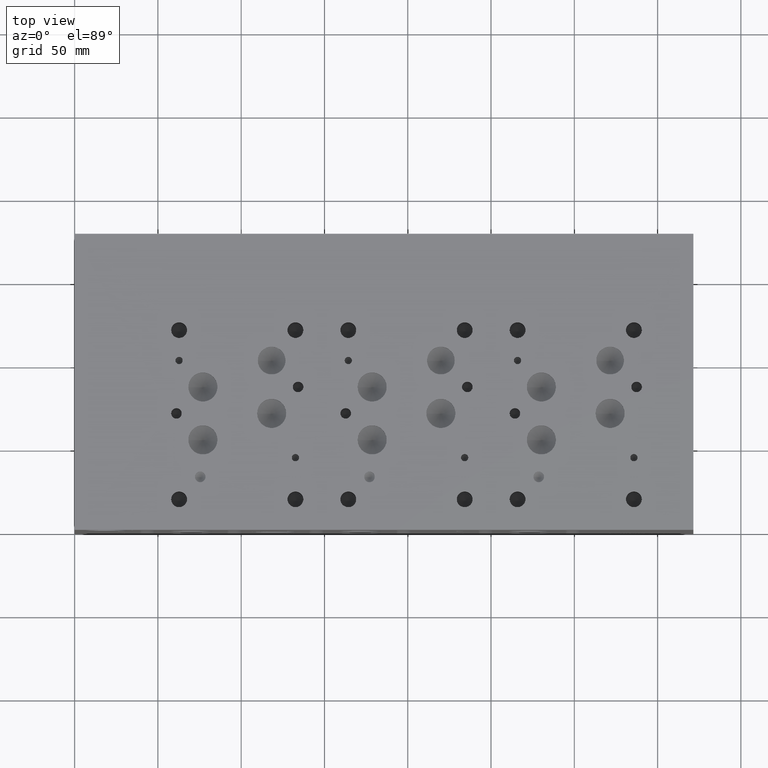
[diagram: clean part render]
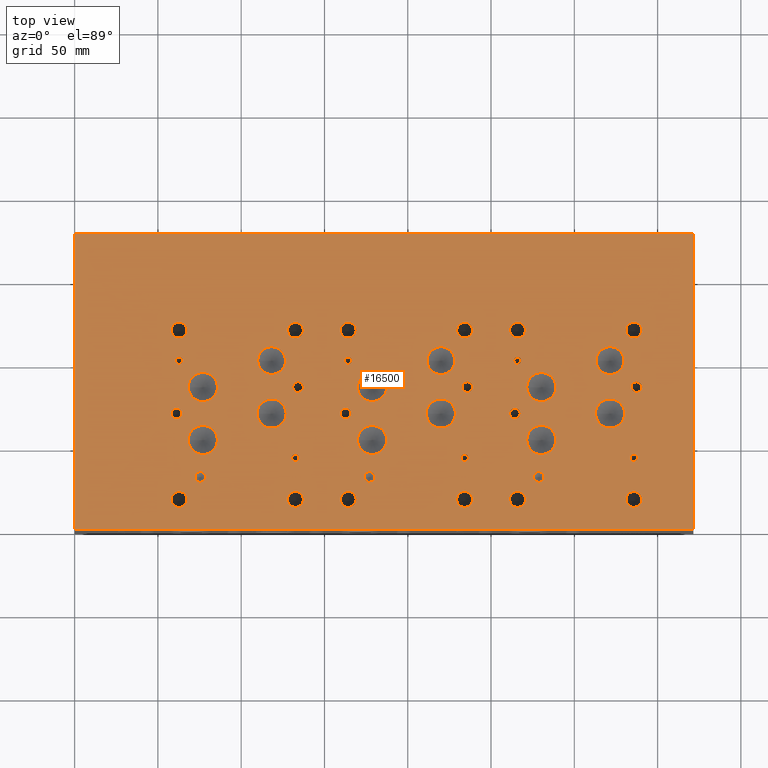
[diagram: same view with one face highlighted and labeled with its STEP entity id]
A machine part, top view. The second image highlights one B-rep face of the part: STEP entity #16500.
In plain terms, the highlighted planar face has unit normal (0, 0, 1).
Its self-contained STEP definition (entity closure, byte-faithful):
#668=CIRCLE('',#17504,2.1844);
#669=CIRCLE('',#17505,2.1844);
#672=CIRCLE('',#17510,2.1844);
#673=CIRCLE('',#17511,2.1844);
#676=CIRCLE('',#17516,2.1844);
#677=CIRCLE('',#17517,2.1844);
#680=CIRCLE('',#17522,2.1844);
#681=CIRCLE('',#17523,2.1844);
#684=CIRCLE('',#17528,3.175);
#685=CIRCLE('',#17529,3.175);
#688=CIRCLE('',#17534,3.175);
#689=CIRCLE('',#17535,3.175);
#692=CIRCLE('',#17540,3.175);
#693=CIRCLE('',#17541,3.175);
#696=CIRCLE('',#17546,8.3312);
#697=CIRCLE('',#17547,8.3312);
#700=CIRCLE('',#17552,8.3312);
#701=CIRCLE('',#17553,8.3312);
#704=CIRCLE('',#17558,8.3312);
#705=CIRCLE('',#17559,8.3312);
#708=CIRCLE('',#17564,8.7376);
#709=CIRCLE('',#17565,8.7376);
#712=CIRCLE('',#17570,8.7376);
#713=CIRCLE('',#17571,8.7376);
#716=CIRCLE('',#17576,8.7376);
#717=CIRCLE('',#17577,8.7376);
#720=CIRCLE('',#17582,8.7376);
#721=CIRCLE('',#17583,8.7376);
#724=CIRCLE('',#17588,8.7376);
#725=CIRCLE('',#17589,8.7376);
#728=CIRCLE('',#17594,8.7376);
#729=CIRCLE('',#17595,8.7376);
#732=CIRCLE('',#17600,8.7376);
#733=CIRCLE('',#17601,8.7376);
#736=CIRCLE('',#17606,8.7376);
#737=CIRCLE('',#17607,8.7376);
#740=CIRCLE('',#17612,8.7376);
#741=CIRCLE('',#17613,8.7376);
#744=CIRCLE('',#17618,2.1844);
#745=CIRCLE('',#17619,2.1844);
#748=CIRCLE('',#17624,2.1844);
#749=CIRCLE('',#17625,2.1844);
#755=CIRCLE('',#17634,3.175);
#756=CIRCLE('',#17635,3.175);
#762=CIRCLE('',#17645,3.175);
#763=CIRCLE('',#17646,3.175);
#769=CIRCLE('',#17656,3.175);
#770=CIRCLE('',#17657,3.175);
#776=CIRCLE('',#17667,3.175);
#777=CIRCLE('',#17668,3.175);
#783=CIRCLE('',#17678,3.175);
#784=CIRCLE('',#17679,3.175);
#790=CIRCLE('',#17689,3.175);
#791=CIRCLE('',#17690,3.175);
#797=CIRCLE('',#17700,4.7625);
#798=CIRCLE('',#17701,4.7625);
#804=CIRCLE('',#17711,4.7625);
#805=CIRCLE('',#17712,4.7625);
#811=CIRCLE('',#17722,4.7625);
#812=CIRCLE('',#17723,4.7625);
#818=CIRCLE('',#17733,4.7625);
#819=CIRCLE('',#17734,4.7625);
#825=CIRCLE('',#17744,4.7625);
#826=CIRCLE('',#17745,4.7625);
#832=CIRCLE('',#17755,4.7625);
#833=CIRCLE('',#17756,4.7625);
#839=CIRCLE('',#17766,4.7625);
#840=CIRCLE('',#17767,4.7625);
#846=CIRCLE('',#17777,4.7625);
#847=CIRCLE('',#17778,4.7625);
#853=CIRCLE('',#17788,4.7625);
#854=CIRCLE('',#17789,4.7625);
#860=CIRCLE('',#17799,4.7625);
#861=CIRCLE('',#17800,4.7625);
#867=CIRCLE('',#17810,4.7625);
#868=CIRCLE('',#17811,4.7625);
#874=CIRCLE('',#17821,4.7625);
#875=CIRCLE('',#17822,4.7625);
#1050=FACE_BOUND('',#3428,.T.);
#1051=FACE_BOUND('',#3429,.T.);
#1052=FACE_BOUND('',#3430,.T.);
#1053=FACE_BOUND('',#3431,.T.);
#1054=FACE_BOUND('',#3432,.T.);
#1055=FACE_BOUND('',#3433,.T.);
#1056=FACE_BOUND('',#3434,.T.);
#1057=FACE_BOUND('',#3435,.T.);
#1058=FACE_BOUND('',#3436,.T.);
#1059=FACE_BOUND('',#3437,.T.);
#1060=FACE_BOUND('',#3438,.T.);
#1061=FACE_BOUND('',#3439,.T.);
#1062=FACE_BOUND('',#3440,.T.);
#1063=FACE_BOUND('',#3441,.T.);
#1064=FACE_BOUND('',#3442,.T.);
#1065=FACE_BOUND('',#3443,.T.);
#1066=FACE_BOUND('',#3444,.T.);
#1067=FACE_BOUND('',#3445,.T.);
#1068=FACE_BOUND('',#3446,.T.);
#1069=FACE_BOUND('',#3447,.T.);
#1070=FACE_BOUND('',#3448,.T.);
#1071=FACE_BOUND('',#3449,.T.);
#1072=FACE_BOUND('',#3450,.T.);
#1073=FACE_BOUND('',#3451,.T.);
#1074=FACE_BOUND('',#3452,.T.);
#1075=FACE_BOUND('',#3453,.T.);
#1076=FACE_BOUND('',#3454,.T.);
#1077=FACE_BOUND('',#3455,.T.);
#1078=FACE_BOUND('',#3456,.T.);
#1079=FACE_BOUND('',#3457,.T.);
#1080=FACE_BOUND('',#3458,.T.);
#1081=FACE_BOUND('',#3459,.T.);
#1082=FACE_BOUND('',#3460,.T.);
#1083=FACE_BOUND('',#3461,.T.);
#1084=FACE_BOUND('',#3462,.T.);
#1085=FACE_BOUND('',#3463,.T.);
#1086=FACE_BOUND('',#3464,.T.);
#1087=FACE_BOUND('',#3465,.T.);
#1088=FACE_BOUND('',#3466,.T.);
#1539=PLANE('',#17828);
#2396=FACE_OUTER_BOUND('',#3427,.T.);
#3427=EDGE_LOOP('',(#14920,#14921,#14922,#14923));
#3428=EDGE_LOOP('',(#14924,#14925));
#3429=EDGE_LOOP('',(#14926,#14927));
#3430=EDGE_LOOP('',(#14928,#14929));
#3431=EDGE_LOOP('',(#14930,#14931));
#3432=EDGE_LOOP('',(#14932,#14933));
#3433=EDGE_LOOP('',(#14934,#14935));
#3434=EDGE_LOOP('',(#14936,#14937));
#3435=EDGE_LOOP('',(#14938,#14939));
#3436=EDGE_LOOP('',(#14940,#14941));
#3437=EDGE_LOOP('',(#14942,#14943));
#3438=EDGE_LOOP('',(#14944,#14945));
#3439=EDGE_LOOP('',(#14946,#14947));
#3440=EDGE_LOOP('',(#14948,#14949));
#3441=EDGE_LOOP('',(#14950,#14951));
#3442=EDGE_LOOP('',(#14952,#14953));
#3443=EDGE_LOOP('',(#14954,#14955));
#3444=EDGE_LOOP('',(#14956,#14957));
#3445=EDGE_LOOP('',(#14958,#14959));
#3446=EDGE_LOOP('',(#14960,#14961));
#3447=EDGE_LOOP('',(#14962,#14963));
#3448=EDGE_LOOP('',(#14964,#14965));
#3449=EDGE_LOOP('',(#14966,#14967));
#3450=EDGE_LOOP('',(#14968,#14969));
#3451=EDGE_LOOP('',(#14970,#14971));
#3452=EDGE_LOOP('',(#14972,#14973));
#3453=EDGE_LOOP('',(#14974,#14975));
#3454=EDGE_LOOP('',(#14976,#14977));
#3455=EDGE_LOOP('',(#14978,#14979));
#3456=EDGE_LOOP('',(#14980,#14981));
#3457=EDGE_LOOP('',(#14982,#14983));
#3458=EDGE_LOOP('',(#14984,#14985));
#3459=EDGE_LOOP('',(#14986,#14987));
#3460=EDGE_LOOP('',(#14988,#14989));
#3461=EDGE_LOOP('',(#14990,#14991));
#3462=EDGE_LOOP('',(#14992,#14993));
#3463=EDGE_LOOP('',(#14994,#14995));
#3464=EDGE_LOOP('',(#14996,#14997));
#3465=EDGE_LOOP('',(#14998,#14999));
#3466=EDGE_LOOP('',(#15000,#15001));
#3502=LINE('',#22070,#4903);
#3562=LINE('',#22377,#4963);
#3897=LINE('',#24107,#5298);
#4868=LINE('',#28429,#6269);
#4903=VECTOR('',#17886,10.);
#4963=VECTOR('',#18032,10.);
#5298=VECTOR('',#18621,10.);
#6269=VECTOR('',#21852,10.);
#6582=VERTEX_POINT('',#22067);
#6583=VERTEX_POINT('',#22069);
#6658=VERTEX_POINT('',#22374);
#6659=VERTEX_POINT('',#22376);
#7935=VERTEX_POINT('',#27765);
#7936=VERTEX_POINT('',#27766);
#7940=VERTEX_POINT('',#27778);
#7941=VERTEX_POINT('',#27779);
#7945=VERTEX_POINT('',#27791);
#7946=VERTEX_POINT('',#27792);
#7950=VERTEX_POINT('',#27804);
#7951=VERTEX_POINT('',#27805);
#7955=VERTEX_POINT('',#27817);
#7956=VERTEX_POINT('',#27818);
#7960=VERTEX_POINT('',#27830);
#7961=VERTEX_POINT('',#27831);
#7965=VERTEX_POINT('',#27843);
#7966=VERTEX_POINT('',#27844);
#7970=VERTEX_POINT('',#27856);
#7971=VERTEX_POINT('',#27857);
#7975=VERTEX_POINT('',#27869);
#7976=VERTEX_POINT('',#27870);
#7980=VERTEX_POINT('',#27882);
#7981=VERTEX_POINT('',#27883);
#7985=VERTEX_POINT('',#27895);
#7986=VERTEX_POINT('',#27896);
#7990=VERTEX_POINT('',#27908);
#7991=VERTEX_POINT('',#27909);
#7995=VERTEX_POINT('',#27921);
#7996=VERTEX_POINT('',#27922);
#8000=VERTEX_POINT('',#27934);
#8001=VERTEX_POINT('',#27935);
#8005=VERTEX_POINT('',#27947);
#8006=VERTEX_POINT('',#27948);
#8010=VERTEX_POINT('',#27960);
#8011=VERTEX_POINT('',#27961);
#8015=VERTEX_POINT('',#27973);
#8016=VERTEX_POINT('',#27974);
#8020=VERTEX_POINT('',#27986);
#8021=VERTEX_POINT('',#27987);
#8025=VERTEX_POINT('',#27999);
#8026=VERTEX_POINT('',#28000);
#8030=VERTEX_POINT('',#28012);
#8031=VERTEX_POINT('',#28013);
#8035=VERTEX_POINT('',#28025);
#8036=VERTEX_POINT('',#28026);
#8043=VERTEX_POINT('',#28045);
#8044=VERTEX_POINT('',#28046);
#8051=VERTEX_POINT('',#28067);
#8052=VERTEX_POINT('',#28068);
#8059=VERTEX_POINT('',#28089);
#8060=VERTEX_POINT('',#28090);
#8067=VERTEX_POINT('',#28111);
#8068=VERTEX_POINT('',#28112);
#8075=VERTEX_POINT('',#28133);
#8076=VERTEX_POINT('',#28134);
#8083=VERTEX_POINT('',#28155);
#8084=VERTEX_POINT('',#28156);
#8091=VERTEX_POINT('',#28177);
#8092=VERTEX_POINT('',#28178);
#8099=VERTEX_POINT('',#28199);
#8100=VERTEX_POINT('',#28200);
#8107=VERTEX_POINT('',#28221);
#8108=VERTEX_POINT('',#28222);
#8115=VERTEX_POINT('',#28243);
#8116=VERTEX_POINT('',#28244);
#8123=VERTEX_POINT('',#28265);
#8124=VERTEX_POINT('',#28266);
#8131=VERTEX_POINT('',#28287);
#8132=VERTEX_POINT('',#28288);
#8139=VERTEX_POINT('',#28309);
#8140=VERTEX_POINT('',#28310);
#8147=VERTEX_POINT('',#28331);
#8148=VERTEX_POINT('',#28332);
#8155=VERTEX_POINT('',#28353);
#8156=VERTEX_POINT('',#28354);
#8163=VERTEX_POINT('',#28375);
#8164=VERTEX_POINT('',#28376);
#8171=VERTEX_POINT('',#28397);
#8172=VERTEX_POINT('',#28398);
#8179=VERTEX_POINT('',#28419);
#8180=VERTEX_POINT('',#28420);
#8231=EDGE_CURVE('',#6583,#6582,#3502,.T.);
#8331=EDGE_CURVE('',#6659,#6658,#3562,.T.);
#8808=EDGE_CURVE('',#6658,#6583,#3897,.T.);
#10151=EDGE_CURVE('',#7935,#7936,#668,.T.);
#10152=EDGE_CURVE('',#7936,#7935,#669,.T.);
#10157=EDGE_CURVE('',#7940,#7941,#672,.T.);
#10158=EDGE_CURVE('',#7941,#7940,#673,.T.);
#10163=EDGE_CURVE('',#7945,#7946,#676,.T.);
#10164=EDGE_CURVE('',#7946,#7945,#677,.T.);
#10169=EDGE_CURVE('',#7950,#7951,#680,.T.);
#10170=EDGE_CURVE('',#7951,#7950,#681,.T.);
#10175=EDGE_CURVE('',#7955,#7956,#684,.T.);
#10176=EDGE_CURVE('',#7956,#7955,#685,.T.);
#10181=EDGE_CURVE('',#7960,#7961,#688,.T.);
#10182=EDGE_CURVE('',#7961,#7960,#689,.T.);
#10187=EDGE_CURVE('',#7965,#7966,#692,.T.);
#10188=EDGE_CURVE('',#7966,#7965,#693,.T.);
#10193=EDGE_CURVE('',#7970,#7971,#696,.T.);
#10194=EDGE_CURVE('',#7971,#7970,#697,.T.);
#10199=EDGE_CURVE('',#7975,#7976,#700,.T.);
#10200=EDGE_CURVE('',#7976,#7975,#701,.T.);
#10205=EDGE_CURVE('',#7980,#7981,#704,.T.);
#10206=EDGE_CURVE('',#7981,#7980,#705,.T.);
#10211=EDGE_CURVE('',#7985,#7986,#708,.T.);
#10212=EDGE_CURVE('',#7986,#7985,#709,.T.);
#10217=EDGE_CURVE('',#7990,#7991,#712,.T.);
#10218=EDGE_CURVE('',#7991,#7990,#713,.T.);
#10223=EDGE_CURVE('',#7995,#7996,#716,.T.);
#10224=EDGE_CURVE('',#7996,#7995,#717,.T.);
#10229=EDGE_CURVE('',#8000,#8001,#720,.T.);
#10230=EDGE_CURVE('',#8001,#8000,#721,.T.);
#10235=EDGE_CURVE('',#8005,#8006,#724,.T.);
#10236=EDGE_CURVE('',#8006,#8005,#725,.T.);
#10241=EDGE_CURVE('',#8010,#8011,#728,.T.);
#10242=EDGE_CURVE('',#8011,#8010,#729,.T.);
#10247=EDGE_CURVE('',#8015,#8016,#732,.T.);
#10248=EDGE_CURVE('',#8016,#8015,#733,.T.);
#10253=EDGE_CURVE('',#8020,#8021,#736,.T.);
#10254=EDGE_CURVE('',#8021,#8020,#737,.T.);
#10259=EDGE_CURVE('',#8025,#8026,#740,.T.);
#10260=EDGE_CURVE('',#8026,#8025,#741,.T.);
#10265=EDGE_CURVE('',#8030,#8031,#744,.T.);
#10266=EDGE_CURVE('',#8031,#8030,#745,.T.);
#10271=EDGE_CURVE('',#8035,#8036,#748,.T.);
#10272=EDGE_CURVE('',#8036,#8035,#749,.T.);
#10280=EDGE_CURVE('',#8043,#8044,#755,.T.);
#10281=EDGE_CURVE('',#8044,#8043,#756,.T.);
#10290=EDGE_CURVE('',#8051,#8052,#762,.T.);
#10291=EDGE_CURVE('',#8052,#8051,#763,.T.);
#10300=EDGE_CURVE('',#8059,#8060,#769,.T.);
#10301=EDGE_CURVE('',#8060,#8059,#770,.T.);
#10310=EDGE_CURVE('',#8067,#8068,#776,.T.);
#10311=EDGE_CURVE('',#8068,#8067,#777,.T.);
#10320=EDGE_CURVE('',#8075,#8076,#783,.T.);
#10321=EDGE_CURVE('',#8076,#8075,#784,.T.);
#10330=EDGE_CURVE('',#8083,#8084,#790,.T.);
#10331=EDGE_CURVE('',#8084,#8083,#791,.T.);
#10340=EDGE_CURVE('',#8091,#8092,#797,.T.);
#10341=EDGE_CURVE('',#8092,#8091,#798,.T.);
#10350=EDGE_CURVE('',#8099,#8100,#804,.T.);
#10351=EDGE_CURVE('',#8100,#8099,#805,.T.);
#10360=EDGE_CURVE('',#8107,#8108,#811,.T.);
#10361=EDGE_CURVE('',#8108,#8107,#812,.T.);
#10370=EDGE_CURVE('',#8115,#8116,#818,.T.);
#10371=EDGE_CURVE('',#8116,#8115,#819,.T.);
#10380=EDGE_CURVE('',#8123,#8124,#825,.T.);
#10381=EDGE_CURVE('',#8124,#8123,#826,.T.);
#10390=EDGE_CURVE('',#8131,#8132,#832,.T.);
#10391=EDGE_CURVE('',#8132,#8131,#833,.T.);
#10400=EDGE_CURVE('',#8139,#8140,#839,.T.);
#10401=EDGE_CURVE('',#8140,#8139,#840,.T.);
#10410=EDGE_CURVE('',#8147,#8148,#846,.T.);
#10411=EDGE_CURVE('',#8148,#8147,#847,.T.);
#10420=EDGE_CURVE('',#8155,#8156,#853,.T.);
#10421=EDGE_CURVE('',#8156,#8155,#854,.T.);
#10430=EDGE_CURVE('',#8163,#8164,#860,.T.);
#10431=EDGE_CURVE('',#8164,#8163,#861,.T.);
#10440=EDGE_CURVE('',#8171,#8172,#867,.T.);
#10441=EDGE_CURVE('',#8172,#8171,#868,.T.);
#10450=EDGE_CURVE('',#8179,#8180,#874,.T.);
#10451=EDGE_CURVE('',#8180,#8179,#875,.T.);
#10455=EDGE_CURVE('',#6582,#6659,#4868,.T.);
#14920=ORIENTED_EDGE('',*,*,#8808,.T.);
#14921=ORIENTED_EDGE('',*,*,#8231,.T.);
#14922=ORIENTED_EDGE('',*,*,#10455,.T.);
#14923=ORIENTED_EDGE('',*,*,#8331,.T.);
#14924=ORIENTED_EDGE('',*,*,#10151,.T.);
#14925=ORIENTED_EDGE('',*,*,#10152,.T.);
#14926=ORIENTED_EDGE('',*,*,#10157,.T.);
#14927=ORIENTED_EDGE('',*,*,#10158,.T.);
#14928=ORIENTED_EDGE('',*,*,#10163,.T.);
#14929=ORIENTED_EDGE('',*,*,#10164,.T.);
#14930=ORIENTED_EDGE('',*,*,#10169,.T.);
#14931=ORIENTED_EDGE('',*,*,#10170,.T.);
#14932=ORIENTED_EDGE('',*,*,#10175,.T.);
#14933=ORIENTED_EDGE('',*,*,#10176,.T.);
#14934=ORIENTED_EDGE('',*,*,#10181,.T.);
#14935=ORIENTED_EDGE('',*,*,#10182,.T.);
#14936=ORIENTED_EDGE('',*,*,#10187,.T.);
#14937=ORIENTED_EDGE('',*,*,#10188,.T.);
#14938=ORIENTED_EDGE('',*,*,#10193,.T.);
#14939=ORIENTED_EDGE('',*,*,#10194,.T.);
#14940=ORIENTED_EDGE('',*,*,#10199,.T.);
#14941=ORIENTED_EDGE('',*,*,#10200,.T.);
#14942=ORIENTED_EDGE('',*,*,#10205,.T.);
#14943=ORIENTED_EDGE('',*,*,#10206,.T.);
#14944=ORIENTED_EDGE('',*,*,#10211,.T.);
#14945=ORIENTED_EDGE('',*,*,#10212,.T.);
#14946=ORIENTED_EDGE('',*,*,#10217,.T.);
#14947=ORIENTED_EDGE('',*,*,#10218,.T.);
#14948=ORIENTED_EDGE('',*,*,#10223,.T.);
#14949=ORIENTED_EDGE('',*,*,#10224,.T.);
#14950=ORIENTED_EDGE('',*,*,#10229,.T.);
#14951=ORIENTED_EDGE('',*,*,#10230,.T.);
#14952=ORIENTED_EDGE('',*,*,#10235,.T.);
#14953=ORIENTED_EDGE('',*,*,#10236,.T.);
#14954=ORIENTED_EDGE('',*,*,#10241,.T.);
#14955=ORIENTED_EDGE('',*,*,#10242,.T.);
#14956=ORIENTED_EDGE('',*,*,#10247,.T.);
#14957=ORIENTED_EDGE('',*,*,#10248,.T.);
#14958=ORIENTED_EDGE('',*,*,#10253,.T.);
#14959=ORIENTED_EDGE('',*,*,#10254,.T.);
#14960=ORIENTED_EDGE('',*,*,#10259,.T.);
#14961=ORIENTED_EDGE('',*,*,#10260,.T.);
#14962=ORIENTED_EDGE('',*,*,#10265,.T.);
#14963=ORIENTED_EDGE('',*,*,#10266,.T.);
#14964=ORIENTED_EDGE('',*,*,#10271,.T.);
#14965=ORIENTED_EDGE('',*,*,#10272,.T.);
#14966=ORIENTED_EDGE('',*,*,#10280,.T.);
#14967=ORIENTED_EDGE('',*,*,#10281,.T.);
#14968=ORIENTED_EDGE('',*,*,#10290,.T.);
#14969=ORIENTED_EDGE('',*,*,#10291,.T.);
#14970=ORIENTED_EDGE('',*,*,#10300,.T.);
#14971=ORIENTED_EDGE('',*,*,#10301,.T.);
#14972=ORIENTED_EDGE('',*,*,#10310,.T.);
#14973=ORIENTED_EDGE('',*,*,#10311,.T.);
#14974=ORIENTED_EDGE('',*,*,#10320,.T.);
#14975=ORIENTED_EDGE('',*,*,#10321,.T.);
#14976=ORIENTED_EDGE('',*,*,#10330,.T.);
#14977=ORIENTED_EDGE('',*,*,#10331,.T.);
#14978=ORIENTED_EDGE('',*,*,#10340,.T.);
#14979=ORIENTED_EDGE('',*,*,#10341,.T.);
#14980=ORIENTED_EDGE('',*,*,#10350,.T.);
#14981=ORIENTED_EDGE('',*,*,#10351,.T.);
#14982=ORIENTED_EDGE('',*,*,#10360,.T.);
#14983=ORIENTED_EDGE('',*,*,#10361,.T.);
#14984=ORIENTED_EDGE('',*,*,#10370,.T.);
#14985=ORIENTED_EDGE('',*,*,#10371,.T.);
#14986=ORIENTED_EDGE('',*,*,#10380,.T.);
#14987=ORIENTED_EDGE('',*,*,#10381,.T.);
#14988=ORIENTED_EDGE('',*,*,#10390,.T.);
#14989=ORIENTED_EDGE('',*,*,#10391,.T.);
#14990=ORIENTED_EDGE('',*,*,#10400,.T.);
#14991=ORIENTED_EDGE('',*,*,#10401,.T.);
#14992=ORIENTED_EDGE('',*,*,#10410,.T.);
#14993=ORIENTED_EDGE('',*,*,#10411,.T.);
#14994=ORIENTED_EDGE('',*,*,#10420,.T.);
#14995=ORIENTED_EDGE('',*,*,#10421,.T.);
#14996=ORIENTED_EDGE('',*,*,#10430,.T.);
#14997=ORIENTED_EDGE('',*,*,#10431,.T.);
#14998=ORIENTED_EDGE('',*,*,#10440,.T.);
#14999=ORIENTED_EDGE('',*,*,#10441,.T.);
#15000=ORIENTED_EDGE('',*,*,#10450,.T.);
#15001=ORIENTED_EDGE('',*,*,#10451,.T.);
#16500=ADVANCED_FACE('',(#2396,#1050,#1051,#1052,#1053,#1054,#1055,#1056,
#1057,#1058,#1059,#1060,#1061,#1062,#1063,#1064,#1065,#1066,#1067,#1068,
#1069,#1070,#1071,#1072,#1073,#1074,#1075,#1076,#1077,#1078,#1079,#1080,
#1081,#1082,#1083,#1084,#1085,#1086,#1087,#1088),#1539,.T.);
#17504=AXIS2_PLACEMENT_3D('',#27767,#21112,#21113);
#17505=AXIS2_PLACEMENT_3D('',#27768,#21114,#21115);
#17510=AXIS2_PLACEMENT_3D('',#27780,#21126,#21127);
#17511=AXIS2_PLACEMENT_3D('',#27781,#21128,#21129);
#17516=AXIS2_PLACEMENT_3D('',#27793,#21140,#21141);
#17517=AXIS2_PLACEMENT_3D('',#27794,#21142,#21143);
#17522=AXIS2_PLACEMENT_3D('',#27806,#21154,#21155);
#17523=AXIS2_PLACEMENT_3D('',#27807,#21156,#21157);
#17528=AXIS2_PLACEMENT_3D('',#27819,#21168,#21169);
#17529=AXIS2_PLACEMENT_3D('',#27820,#21170,#21171);
#17534=AXIS2_PLACEMENT_3D('',#27832,#21182,#21183);
#17535=AXIS2_PLACEMENT_3D('',#27833,#21184,#21185);
#17540=AXIS2_PLACEMENT_3D('',#27845,#21196,#21197);
#17541=AXIS2_PLACEMENT_3D('',#27846,#21198,#21199);
#17546=AXIS2_PLACEMENT_3D('',#27858,#21210,#21211);
#17547=AXIS2_PLACEMENT_3D('',#27859,#21212,#21213);
#17552=AXIS2_PLACEMENT_3D('',#27871,#21224,#21225);
#17553=AXIS2_PLACEMENT_3D('',#27872,#21226,#21227);
#17558=AXIS2_PLACEMENT_3D('',#27884,#21238,#21239);
#17559=AXIS2_PLACEMENT_3D('',#27885,#21240,#21241);
#17564=AXIS2_PLACEMENT_3D('',#27897,#21252,#21253);
#17565=AXIS2_PLACEMENT_3D('',#27898,#21254,#21255);
#17570=AXIS2_PLACEMENT_3D('',#27910,#21266,#21267);
#17571=AXIS2_PLACEMENT_3D('',#27911,#21268,#21269);
#17576=AXIS2_PLACEMENT_3D('',#27923,#21280,#21281);
#17577=AXIS2_PLACEMENT_3D('',#27924,#21282,#21283);
#17582=AXIS2_PLACEMENT_3D('',#27936,#21294,#21295);
#17583=AXIS2_PLACEMENT_3D('',#27937,#21296,#21297);
#17588=AXIS2_PLACEMENT_3D('',#27949,#21308,#21309);
#17589=AXIS2_PLACEMENT_3D('',#27950,#21310,#21311);
#17594=AXIS2_PLACEMENT_3D('',#27962,#21322,#21323);
#17595=AXIS2_PLACEMENT_3D('',#27963,#21324,#21325);
#17600=AXIS2_PLACEMENT_3D('',#27975,#21336,#21337);
#17601=AXIS2_PLACEMENT_3D('',#27976,#21338,#21339);
#17606=AXIS2_PLACEMENT_3D('',#27988,#21350,#21351);
#17607=AXIS2_PLACEMENT_3D('',#27989,#21352,#21353);
#17612=AXIS2_PLACEMENT_3D('',#28001,#21364,#21365);
#17613=AXIS2_PLACEMENT_3D('',#28002,#21366,#21367);
#17618=AXIS2_PLACEMENT_3D('',#28014,#21378,#21379);
#17619=AXIS2_PLACEMENT_3D('',#28015,#21380,#21381);
#17624=AXIS2_PLACEMENT_3D('',#28027,#21392,#21393);
#17625=AXIS2_PLACEMENT_3D('',#28028,#21394,#21395);
#17634=AXIS2_PLACEMENT_3D('',#28047,#21414,#21415);
#17635=AXIS2_PLACEMENT_3D('',#28048,#21416,#21417);
#17645=AXIS2_PLACEMENT_3D('',#28069,#21439,#21440);
#17646=AXIS2_PLACEMENT_3D('',#28070,#21441,#21442);
#17656=AXIS2_PLACEMENT_3D('',#28091,#21464,#21465);
#17657=AXIS2_PLACEMENT_3D('',#28092,#21466,#21467);
#17667=AXIS2_PLACEMENT_3D('',#28113,#21489,#21490);
#17668=AXIS2_PLACEMENT_3D('',#28114,#21491,#21492);
#17678=AXIS2_PLACEMENT_3D('',#28135,#21514,#21515);
#17679=AXIS2_PLACEMENT_3D('',#28136,#21516,#21517);
#17689=AXIS2_PLACEMENT_3D('',#28157,#21539,#21540);
#17690=AXIS2_PLACEMENT_3D('',#28158,#21541,#21542);
#17700=AXIS2_PLACEMENT_3D('',#28179,#21564,#21565);
#17701=AXIS2_PLACEMENT_3D('',#28180,#21566,#21567);
#17711=AXIS2_PLACEMENT_3D('',#28201,#21589,#21590);
#17712=AXIS2_PLACEMENT_3D('',#28202,#21591,#21592);
#17722=AXIS2_PLACEMENT_3D('',#28223,#21614,#21615);
#17723=AXIS2_PLACEMENT_3D('',#28224,#21616,#21617);
#17733=AXIS2_PLACEMENT_3D('',#28245,#21639,#21640);
#17734=AXIS2_PLACEMENT_3D('',#28246,#21641,#21642);
#17744=AXIS2_PLACEMENT_3D('',#28267,#21664,#21665);
#17745=AXIS2_PLACEMENT_3D('',#28268,#21666,#21667);
#17755=AXIS2_PLACEMENT_3D('',#28289,#21689,#21690);
#17756=AXIS2_PLACEMENT_3D('',#28290,#21691,#21692);
#17766=AXIS2_PLACEMENT_3D('',#28311,#21714,#21715);
#17767=AXIS2_PLACEMENT_3D('',#28312,#21716,#21717);
#17777=AXIS2_PLACEMENT_3D('',#28333,#21739,#21740);
#17778=AXIS2_PLACEMENT_3D('',#28334,#21741,#21742);
#17788=AXIS2_PLACEMENT_3D('',#28355,#21764,#21765);
#17789=AXIS2_PLACEMENT_3D('',#28356,#21766,#21767);
#17799=AXIS2_PLACEMENT_3D('',#28377,#21789,#21790);
#17800=AXIS2_PLACEMENT_3D('',#28378,#21791,#21792);
#17810=AXIS2_PLACEMENT_3D('',#28399,#21814,#21815);
#17811=AXIS2_PLACEMENT_3D('',#28400,#21816,#21817);
#17821=AXIS2_PLACEMENT_3D('',#28421,#21839,#21840);
#17822=AXIS2_PLACEMENT_3D('',#28422,#21841,#21842);
#17828=AXIS2_PLACEMENT_3D('',#28432,#21857,#21858);
#17886=DIRECTION('',(0.,1.,0.));
#18032=DIRECTION('',(0.,-1.,0.));
#18621=DIRECTION('',(1.,0.,0.));
#21112=DIRECTION('center_axis',(0.,0.,-1.));
#21113=DIRECTION('ref_axis',(1.,0.,0.));
#21114=DIRECTION('center_axis',(0.,0.,-1.));
#21115=DIRECTION('ref_axis',(1.,0.,0.));
#21126=DIRECTION('center_axis',(0.,0.,-1.));
#21127=DIRECTION('ref_axis',(1.,0.,0.));
#21128=DIRECTION('center_axis',(0.,0.,-1.));
#21129=DIRECTION('ref_axis',(1.,0.,0.));
#21140=DIRECTION('center_axis',(0.,0.,-1.));
#21141=DIRECTION('ref_axis',(1.,0.,0.));
#21142=DIRECTION('center_axis',(0.,0.,-1.));
#21143=DIRECTION('ref_axis',(1.,0.,0.));
#21154=DIRECTION('center_axis',(0.,0.,-1.));
#21155=DIRECTION('ref_axis',(1.,0.,0.));
#21156=DIRECTION('center_axis',(0.,0.,-1.));
#21157=DIRECTION('ref_axis',(1.,0.,0.));
#21168=DIRECTION('center_axis',(0.,0.,-1.));
#21169=DIRECTION('ref_axis',(1.,0.,0.));
#21170=DIRECTION('center_axis',(0.,0.,-1.));
#21171=DIRECTION('ref_axis',(1.,0.,0.));
#21182=DIRECTION('center_axis',(0.,0.,-1.));
#21183=DIRECTION('ref_axis',(1.,0.,0.));
#21184=DIRECTION('center_axis',(0.,0.,-1.));
#21185=DIRECTION('ref_axis',(1.,0.,0.));
#21196=DIRECTION('center_axis',(0.,0.,-1.));
#21197=DIRECTION('ref_axis',(1.,0.,0.));
#21198=DIRECTION('center_axis',(0.,0.,-1.));
#21199=DIRECTION('ref_axis',(1.,0.,0.));
#21210=DIRECTION('center_axis',(0.,0.,-1.));
#21211=DIRECTION('ref_axis',(1.,0.,0.));
#21212=DIRECTION('center_axis',(0.,0.,-1.));
#21213=DIRECTION('ref_axis',(1.,0.,0.));
#21224=DIRECTION('center_axis',(0.,0.,-1.));
#21225=DIRECTION('ref_axis',(1.,0.,0.));
#21226=DIRECTION('center_axis',(0.,0.,-1.));
#21227=DIRECTION('ref_axis',(1.,0.,0.));
#21238=DIRECTION('center_axis',(0.,0.,-1.));
#21239=DIRECTION('ref_axis',(1.,0.,0.));
#21240=DIRECTION('center_axis',(0.,0.,-1.));
#21241=DIRECTION('ref_axis',(1.,0.,0.));
#21252=DIRECTION('center_axis',(0.,0.,-1.));
#21253=DIRECTION('ref_axis',(1.,0.,0.));
#21254=DIRECTION('center_axis',(0.,0.,-1.));
#21255=DIRECTION('ref_axis',(1.,0.,0.));
#21266=DIRECTION('center_axis',(0.,0.,-1.));
#21267=DIRECTION('ref_axis',(1.,0.,0.));
#21268=DIRECTION('center_axis',(0.,0.,-1.));
#21269=DIRECTION('ref_axis',(1.,0.,0.));
#21280=DIRECTION('center_axis',(0.,0.,-1.));
#21281=DIRECTION('ref_axis',(1.,0.,0.));
#21282=DIRECTION('center_axis',(0.,0.,-1.));
#21283=DIRECTION('ref_axis',(1.,0.,0.));
#21294=DIRECTION('center_axis',(0.,0.,-1.));
#21295=DIRECTION('ref_axis',(1.,0.,0.));
#21296=DIRECTION('center_axis',(0.,0.,-1.));
#21297=DIRECTION('ref_axis',(1.,0.,0.));
#21308=DIRECTION('center_axis',(0.,0.,-1.));
#21309=DIRECTION('ref_axis',(1.,0.,0.));
#21310=DIRECTION('center_axis',(0.,0.,-1.));
#21311=DIRECTION('ref_axis',(1.,0.,0.));
#21322=DIRECTION('center_axis',(0.,0.,-1.));
#21323=DIRECTION('ref_axis',(1.,0.,0.));
#21324=DIRECTION('center_axis',(0.,0.,-1.));
#21325=DIRECTION('ref_axis',(1.,0.,0.));
#21336=DIRECTION('center_axis',(0.,0.,-1.));
#21337=DIRECTION('ref_axis',(1.,0.,0.));
#21338=DIRECTION('center_axis',(0.,0.,-1.));
#21339=DIRECTION('ref_axis',(1.,0.,0.));
#21350=DIRECTION('center_axis',(0.,0.,-1.));
#21351=DIRECTION('ref_axis',(1.,0.,0.));
#21352=DIRECTION('center_axis',(0.,0.,-1.));
#21353=DIRECTION('ref_axis',(1.,0.,0.));
#21364=DIRECTION('center_axis',(0.,0.,-1.));
#21365=DIRECTION('ref_axis',(1.,0.,0.));
#21366=DIRECTION('center_axis',(0.,0.,-1.));
#21367=DIRECTION('ref_axis',(1.,0.,0.));
#21378=DIRECTION('center_axis',(0.,0.,-1.));
#21379=DIRECTION('ref_axis',(1.,0.,0.));
#21380=DIRECTION('center_axis',(0.,0.,-1.));
#21381=DIRECTION('ref_axis',(1.,0.,0.));
#21392=DIRECTION('center_axis',(0.,0.,-1.));
#21393=DIRECTION('ref_axis',(1.,0.,0.));
#21394=DIRECTION('center_axis',(0.,0.,-1.));
#21395=DIRECTION('ref_axis',(1.,0.,0.));
#21414=DIRECTION('center_axis',(0.,0.,-1.));
#21415=DIRECTION('ref_axis',(1.,0.,0.));
#21416=DIRECTION('center_axis',(0.,0.,-1.));
#21417=DIRECTION('ref_axis',(1.,0.,0.));
#21439=DIRECTION('center_axis',(0.,0.,-1.));
#21440=DIRECTION('ref_axis',(1.,0.,0.));
#21441=DIRECTION('center_axis',(0.,0.,-1.));
#21442=DIRECTION('ref_axis',(1.,0.,0.));
#21464=DIRECTION('center_axis',(0.,0.,-1.));
#21465=DIRECTION('ref_axis',(1.,0.,0.));
#21466=DIRECTION('center_axis',(0.,0.,-1.));
#21467=DIRECTION('ref_axis',(1.,0.,0.));
#21489=DIRECTION('center_axis',(0.,0.,-1.));
#21490=DIRECTION('ref_axis',(1.,0.,0.));
#21491=DIRECTION('center_axis',(0.,0.,-1.));
#21492=DIRECTION('ref_axis',(1.,0.,0.));
#21514=DIRECTION('center_axis',(0.,0.,-1.));
#21515=DIRECTION('ref_axis',(1.,0.,0.));
#21516=DIRECTION('center_axis',(0.,0.,-1.));
#21517=DIRECTION('ref_axis',(1.,0.,0.));
#21539=DIRECTION('center_axis',(0.,0.,-1.));
#21540=DIRECTION('ref_axis',(1.,0.,0.));
#21541=DIRECTION('center_axis',(0.,0.,-1.));
#21542=DIRECTION('ref_axis',(1.,0.,0.));
#21564=DIRECTION('center_axis',(0.,0.,-1.));
#21565=DIRECTION('ref_axis',(1.,0.,0.));
#21566=DIRECTION('center_axis',(0.,0.,-1.));
#21567=DIRECTION('ref_axis',(1.,0.,0.));
#21589=DIRECTION('center_axis',(0.,0.,-1.));
#21590=DIRECTION('ref_axis',(1.,0.,0.));
#21591=DIRECTION('center_axis',(0.,0.,-1.));
#21592=DIRECTION('ref_axis',(1.,0.,0.));
#21614=DIRECTION('center_axis',(0.,0.,-1.));
#21615=DIRECTION('ref_axis',(1.,0.,0.));
#21616=DIRECTION('center_axis',(0.,0.,-1.));
#21617=DIRECTION('ref_axis',(1.,0.,0.));
#21639=DIRECTION('center_axis',(0.,0.,-1.));
#21640=DIRECTION('ref_axis',(1.,0.,0.));
#21641=DIRECTION('center_axis',(0.,0.,-1.));
#21642=DIRECTION('ref_axis',(1.,0.,0.));
#21664=DIRECTION('center_axis',(0.,0.,-1.));
#21665=DIRECTION('ref_axis',(1.,0.,0.));
#21666=DIRECTION('center_axis',(0.,0.,-1.));
#21667=DIRECTION('ref_axis',(1.,0.,0.));
#21689=DIRECTION('center_axis',(0.,0.,-1.));
#21690=DIRECTION('ref_axis',(1.,0.,0.));
#21691=DIRECTION('center_axis',(0.,0.,-1.));
#21692=DIRECTION('ref_axis',(1.,0.,0.));
#21714=DIRECTION('center_axis',(0.,0.,-1.));
#21715=DIRECTION('ref_axis',(1.,0.,0.));
#21716=DIRECTION('center_axis',(0.,0.,-1.));
#21717=DIRECTION('ref_axis',(1.,0.,0.));
#21739=DIRECTION('center_axis',(0.,0.,-1.));
#21740=DIRECTION('ref_axis',(1.,0.,0.));
#21741=DIRECTION('center_axis',(0.,0.,-1.));
#21742=DIRECTION('ref_axis',(1.,0.,0.));
#21764=DIRECTION('center_axis',(0.,0.,-1.));
#21765=DIRECTION('ref_axis',(1.,0.,0.));
#21766=DIRECTION('center_axis',(0.,0.,-1.));
#21767=DIRECTION('ref_axis',(1.,0.,0.));
#21789=DIRECTION('center_axis',(0.,0.,-1.));
#21790=DIRECTION('ref_axis',(1.,0.,0.));
#21791=DIRECTION('center_axis',(0.,0.,-1.));
#21792=DIRECTION('ref_axis',(1.,0.,0.));
#21814=DIRECTION('center_axis',(0.,0.,-1.));
#21815=DIRECTION('ref_axis',(1.,0.,0.));
#21816=DIRECTION('center_axis',(0.,0.,-1.));
#21817=DIRECTION('ref_axis',(1.,0.,0.));
#21839=DIRECTION('center_axis',(0.,0.,-1.));
#21840=DIRECTION('ref_axis',(1.,0.,0.));
#21841=DIRECTION('center_axis',(0.,0.,-1.));
#21842=DIRECTION('ref_axis',(1.,0.,0.));
#21852=DIRECTION('',(-1.,0.,0.));
#21857=DIRECTION('center_axis',(0.,0.,1.));
#21858=DIRECTION('ref_axis',(1.,0.,0.));
#22067=CARTESIAN_POINT('',(371.475,177.8,152.4));
#22069=CARTESIAN_POINT('',(371.475,0.,152.4));
#22070=CARTESIAN_POINT('',(371.475,0.,152.4));
#22374=CARTESIAN_POINT('',(0.,0.,152.4));
#22376=CARTESIAN_POINT('',(0.,177.8,152.4));
#22377=CARTESIAN_POINT('',(0.,177.8,152.4));
#24107=CARTESIAN_POINT('',(0.,0.,152.4));
#27765=CARTESIAN_POINT('',(268.0716,101.6,152.4));
#27766=CARTESIAN_POINT('',(263.7028,101.6,152.4));
#27767=CARTESIAN_POINT('Origin',(265.8872,101.6,152.4));
#27768=CARTESIAN_POINT('Origin',(265.8872,101.6,152.4));
#27778=CARTESIAN_POINT('',(166.4716,101.6,152.4));
#27779=CARTESIAN_POINT('',(162.1028,101.6,152.4));
#27780=CARTESIAN_POINT('Origin',(164.2872,101.6,152.4));
#27781=CARTESIAN_POINT('Origin',(164.2872,101.6,152.4));
#27791=CARTESIAN_POINT('',(236.3216,43.2562,152.4));
#27792=CARTESIAN_POINT('',(231.9528,43.2562,152.4));
#27793=CARTESIAN_POINT('Origin',(234.1372,43.2562,152.4));
#27794=CARTESIAN_POINT('Origin',(234.1372,43.2562,152.4));
#27804=CARTESIAN_POINT('',(337.9216,43.2562,152.4));
#27805=CARTESIAN_POINT('',(333.5528,43.2562,152.4));
#27806=CARTESIAN_POINT('Origin',(335.7372,43.2562,152.4));
#27807=CARTESIAN_POINT('Origin',(335.7372,43.2562,152.4));
#27817=CARTESIAN_POINT('',(180.1622,31.75,152.4));
#27818=CARTESIAN_POINT('',(173.8122,31.75,152.4));
#27819=CARTESIAN_POINT('Origin',(176.9872,31.75,152.4));
#27820=CARTESIAN_POINT('Origin',(176.9872,31.75,152.4));
#27830=CARTESIAN_POINT('',(78.5622,31.75,152.4));
#27831=CARTESIAN_POINT('',(72.2122,31.75,152.4));
#27832=CARTESIAN_POINT('Origin',(75.3872,31.75,152.4));
#27833=CARTESIAN_POINT('Origin',(75.3872,31.75,152.4));
#27843=CARTESIAN_POINT('',(281.7622,31.75,152.4));
#27844=CARTESIAN_POINT('',(275.4122,31.75,152.4));
#27845=CARTESIAN_POINT('Origin',(278.5872,31.75,152.4));
#27846=CARTESIAN_POINT('Origin',(278.5872,31.75,152.4));
#27856=CARTESIAN_POINT('',(228.1936,101.6,152.4));
#27857=CARTESIAN_POINT('',(211.5312,101.6,152.4));
#27858=CARTESIAN_POINT('Origin',(219.8624,101.6,152.4));
#27859=CARTESIAN_POINT('Origin',(219.8624,101.6,152.4));
#27869=CARTESIAN_POINT('',(126.5936,101.6,152.4));
#27870=CARTESIAN_POINT('',(109.9312,101.6,152.4));
#27871=CARTESIAN_POINT('Origin',(118.2624,101.6,152.4));
#27872=CARTESIAN_POINT('Origin',(118.2624,101.6,152.4));
#27882=CARTESIAN_POINT('',(329.7936,101.6,152.4));
#27883=CARTESIAN_POINT('',(313.1312,101.6,152.4));
#27884=CARTESIAN_POINT('Origin',(321.4624,101.6,152.4));
#27885=CARTESIAN_POINT('Origin',(321.4624,101.6,152.4));
#27895=CARTESIAN_POINT('',(288.925,85.725,152.4));
#27896=CARTESIAN_POINT('',(271.4498,85.725,152.4));
#27897=CARTESIAN_POINT('Origin',(280.1874,85.725,152.4));
#27898=CARTESIAN_POINT('Origin',(280.1874,85.725,152.4));
#27908=CARTESIAN_POINT('',(187.325,53.975,152.4));
#27909=CARTESIAN_POINT('',(169.8498,53.975,152.4));
#27910=CARTESIAN_POINT('Origin',(178.5874,53.975,152.4));
#27911=CARTESIAN_POINT('Origin',(178.5874,53.975,152.4));
#27921=CARTESIAN_POINT('',(228.6,69.85,152.4));
#27922=CARTESIAN_POINT('',(211.1248,69.85,152.4));
#27923=CARTESIAN_POINT('Origin',(219.8624,69.85,152.4));
#27924=CARTESIAN_POINT('Origin',(219.8624,69.85,152.4));
#27934=CARTESIAN_POINT('',(85.725,85.725,152.4));
#27935=CARTESIAN_POINT('',(68.2498,85.725,152.4));
#27936=CARTESIAN_POINT('Origin',(76.9874,85.725,152.4));
#27937=CARTESIAN_POINT('Origin',(76.9874,85.725,152.4));
#27947=CARTESIAN_POINT('',(127.,69.85,152.4));
#27948=CARTESIAN_POINT('',(109.5248,69.85,152.4));
#27949=CARTESIAN_POINT('Origin',(118.2624,69.85,152.4));
#27950=CARTESIAN_POINT('Origin',(118.2624,69.85,152.4));
#27960=CARTESIAN_POINT('',(85.725,53.975,152.4));
#27961=CARTESIAN_POINT('',(68.2498,53.975,152.4));
#27962=CARTESIAN_POINT('Origin',(76.9874,53.975,152.4));
#27963=CARTESIAN_POINT('Origin',(76.9874,53.975,152.4));
#27973=CARTESIAN_POINT('',(187.325,85.725,152.4));
#27974=CARTESIAN_POINT('',(169.8498,85.725,152.4));
#27975=CARTESIAN_POINT('Origin',(178.5874,85.725,152.4));
#27976=CARTESIAN_POINT('Origin',(178.5874,85.725,152.4));
#27986=CARTESIAN_POINT('',(330.2,69.85,152.4));
#27987=CARTESIAN_POINT('',(312.7248,69.85,152.4));
#27988=CARTESIAN_POINT('Origin',(321.4624,69.85,152.4));
#27989=CARTESIAN_POINT('Origin',(321.4624,69.85,152.4));
#27999=CARTESIAN_POINT('',(288.925,53.975,152.4));
#28000=CARTESIAN_POINT('',(271.4498,53.975,152.4));
#28001=CARTESIAN_POINT('Origin',(280.1874,53.975,152.4));
#28002=CARTESIAN_POINT('Origin',(280.1874,53.975,152.4));
#28012=CARTESIAN_POINT('',(64.8716,101.6,152.4));
#28013=CARTESIAN_POINT('',(60.5028,101.6,152.4));
#28014=CARTESIAN_POINT('Origin',(62.6872,101.6,152.4));
#28015=CARTESIAN_POINT('Origin',(62.6872,101.6,152.4));
#28025=CARTESIAN_POINT('',(134.7216,43.2562,152.4));
#28026=CARTESIAN_POINT('',(130.3528,43.2562,152.4));
#28027=CARTESIAN_POINT('Origin',(132.5372,43.2562,152.4));
#28028=CARTESIAN_POINT('Origin',(132.5372,43.2562,152.4));
#28045=CARTESIAN_POINT('',(267.4874,69.85,152.4));
#28046=CARTESIAN_POINT('',(261.1374,69.85,152.4));
#28047=CARTESIAN_POINT('Origin',(264.3124,69.85,152.4));
#28048=CARTESIAN_POINT('Origin',(264.3124,69.85,152.4));
#28067=CARTESIAN_POINT('',(165.8874,69.85,152.4));
#28068=CARTESIAN_POINT('',(159.5374,69.85,152.4));
#28069=CARTESIAN_POINT('Origin',(162.7124,69.85,152.4));
#28070=CARTESIAN_POINT('Origin',(162.7124,69.85,152.4));
#28089=CARTESIAN_POINT('',(64.2874,69.85,152.4));
#28090=CARTESIAN_POINT('',(57.9374,69.85,152.4));
#28091=CARTESIAN_POINT('Origin',(61.1124,69.85,152.4));
#28092=CARTESIAN_POINT('Origin',(61.1124,69.85,152.4));
#28111=CARTESIAN_POINT('',(137.3124,85.725,152.4));
#28112=CARTESIAN_POINT('',(130.9624,85.725,152.4));
#28113=CARTESIAN_POINT('Origin',(134.1374,85.725,152.4));
#28114=CARTESIAN_POINT('Origin',(134.1374,85.725,152.4));
#28133=CARTESIAN_POINT('',(238.9124,85.725,152.4));
#28134=CARTESIAN_POINT('',(232.5624,85.725,152.4));
#28135=CARTESIAN_POINT('Origin',(235.7374,85.725,152.4));
#28136=CARTESIAN_POINT('Origin',(235.7374,85.725,152.4));
#28155=CARTESIAN_POINT('',(340.5124,85.725,152.4));
#28156=CARTESIAN_POINT('',(334.1624,85.725,152.4));
#28157=CARTESIAN_POINT('Origin',(337.3374,85.725,152.4));
#28158=CARTESIAN_POINT('Origin',(337.3374,85.725,152.4));
#28177=CARTESIAN_POINT('',(340.4997,18.2626,152.4));
#28178=CARTESIAN_POINT('',(330.9747,18.2626,152.4));
#28179=CARTESIAN_POINT('Origin',(335.7372,18.2626,152.4));
#28180=CARTESIAN_POINT('Origin',(335.7372,18.2626,152.4));
#28199=CARTESIAN_POINT('',(270.6497,119.8626,152.4));
#28200=CARTESIAN_POINT('',(261.1247,119.8626,152.4));
#28201=CARTESIAN_POINT('Origin',(265.8872,119.8626,152.4));
#28202=CARTESIAN_POINT('Origin',(265.8872,119.8626,152.4));
#28221=CARTESIAN_POINT('',(238.8997,18.2626,152.4));
#28222=CARTESIAN_POINT('',(229.3747,18.2626,152.4));
#28223=CARTESIAN_POINT('Origin',(234.1372,18.2626,152.4));
#28224=CARTESIAN_POINT('Origin',(234.1372,18.2626,152.4));
#28243=CARTESIAN_POINT('',(169.0497,119.8626,152.4));
#28244=CARTESIAN_POINT('',(159.5247,119.8626,152.4));
#28245=CARTESIAN_POINT('Origin',(164.2872,119.8626,152.4));
#28246=CARTESIAN_POINT('Origin',(164.2872,119.8626,152.4));
#28265=CARTESIAN_POINT('',(137.2997,18.2626,152.4));
#28266=CARTESIAN_POINT('',(127.7747,18.2626,152.4));
#28267=CARTESIAN_POINT('Origin',(132.5372,18.2626,152.4));
#28268=CARTESIAN_POINT('Origin',(132.5372,18.2626,152.4));
#28287=CARTESIAN_POINT('',(67.4497,119.8626,152.4));
#28288=CARTESIAN_POINT('',(57.9247,119.8626,152.4));
#28289=CARTESIAN_POINT('Origin',(62.6872,119.8626,152.4));
#28290=CARTESIAN_POINT('Origin',(62.6872,119.8626,152.4));
#28309=CARTESIAN_POINT('',(137.2997,119.8626,152.4));
#28310=CARTESIAN_POINT('',(127.7747,119.8626,152.4));
#28311=CARTESIAN_POINT('Origin',(132.5372,119.8626,152.4));
#28312=CARTESIAN_POINT('Origin',(132.5372,119.8626,152.4));
#28331=CARTESIAN_POINT('',(67.4497,18.2626,152.4));
#28332=CARTESIAN_POINT('',(57.9247,18.2626,152.4));
#28333=CARTESIAN_POINT('Origin',(62.6872,18.2626,152.4));
#28334=CARTESIAN_POINT('Origin',(62.6872,18.2626,152.4));
#28353=CARTESIAN_POINT('',(238.8997,119.8626,152.4));
#28354=CARTESIAN_POINT('',(229.3747,119.8626,152.4));
#28355=CARTESIAN_POINT('Origin',(234.1372,119.8626,152.4));
#28356=CARTESIAN_POINT('Origin',(234.1372,119.8626,152.4));
#28375=CARTESIAN_POINT('',(169.0497,18.2626,152.4));
#28376=CARTESIAN_POINT('',(159.5247,18.2626,152.4));
#28377=CARTESIAN_POINT('Origin',(164.2872,18.2626,152.4));
#28378=CARTESIAN_POINT('Origin',(164.2872,18.2626,152.4));
#28397=CARTESIAN_POINT('',(340.4997,119.8626,152.4));
#28398=CARTESIAN_POINT('',(330.9747,119.8626,152.4));
#28399=CARTESIAN_POINT('Origin',(335.7372,119.8626,152.4));
#28400=CARTESIAN_POINT('Origin',(335.7372,119.8626,152.4));
#28419=CARTESIAN_POINT('',(270.6497,18.2626,152.4));
#28420=CARTESIAN_POINT('',(261.1247,18.2626,152.4));
#28421=CARTESIAN_POINT('Origin',(265.8872,18.2626,152.4));
#28422=CARTESIAN_POINT('Origin',(265.8872,18.2626,152.4));
#28429=CARTESIAN_POINT('',(371.475,177.8,152.4));
#28432=CARTESIAN_POINT('Origin',(185.7375,88.9,152.4));